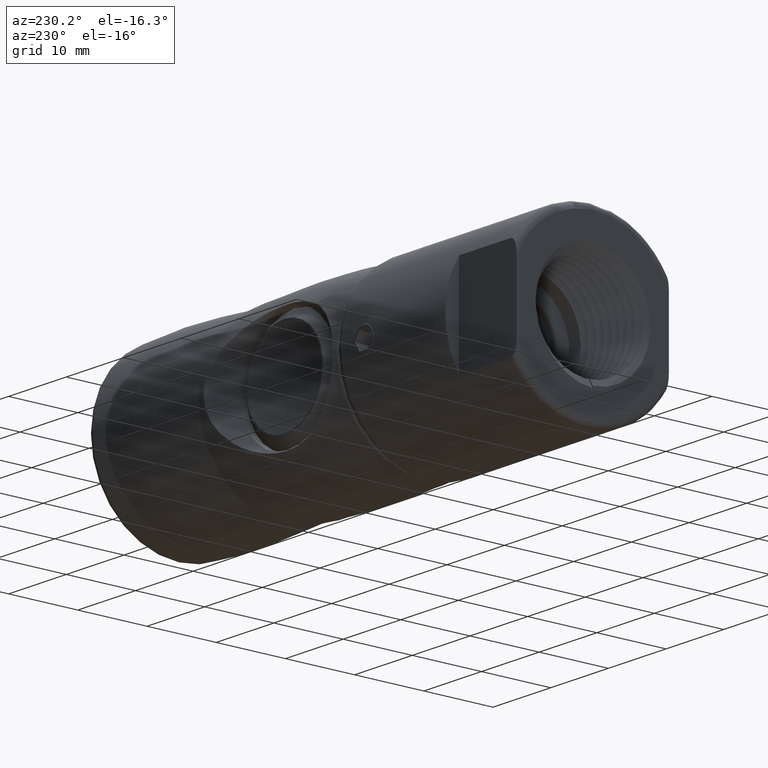
[diagram: clean part render]
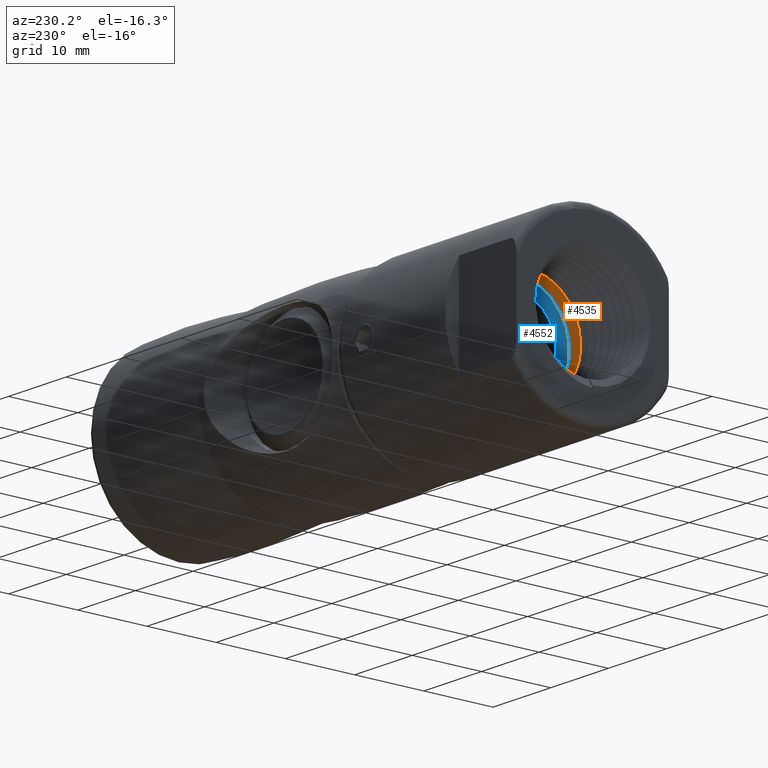
[diagram: same view with the hole feature highlighted: cylindrical wall and planar end face, labeled with their STEP entity ids]
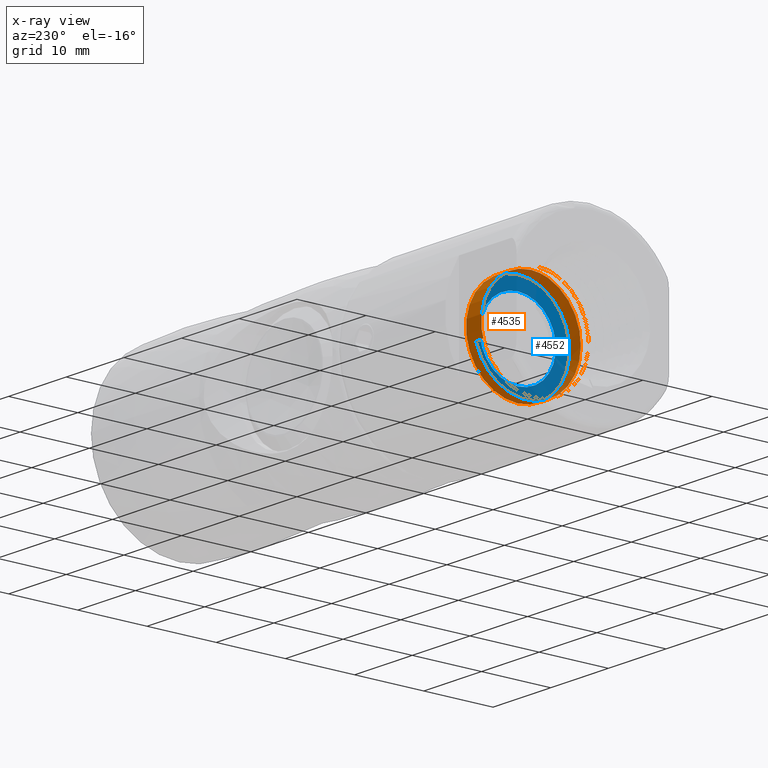
[diagram: x-ray of the same camera — body ghosted, the hole faces saturated]
A machine part, auxiliary view. The highlighted faces form one hole feature of diameter 14.95 mm: the cylindrical wall (entity #4535, orange) and its adjacent planar end face (entity #4552, blue) — they share a circular edge in the B-rep.
The next image is the same camera in x-ray (body ghosted, the hole faces saturated) — the bore reads through the body.
Wall:
#275=ELLIPSE('',#5119,275.193722271999,7.47358320249309);
#415=B_SPLINE_CURVE_WITH_KNOTS('',3,(#16108,#16109,#16110,#16111,#16112,
#16113,#16114,#16115,#16116,#16117,#16118,#16119,#16120,#16121,#16122,#16123,
#16124,#16125,#16126,#16127,#16128,#16129,#16130,#16131,#16132,#16133,#16134,
#16135,#16136,#16137,#16138,#16139,#16140,#16141,#16142,#16143,#16144,#16145),
 .UNSPECIFIED.,.F.,.F.,(4,2,2,2,2,2,2,2,2,2,2,2,2,2,2,2,2,2,4),(-35.3508891733278,
-35.347807024069,-35.058712468714,-34.7580738165976,-34.4689577743233,-34.1682522247599,
-33.8791949627026,-33.5785819225224,-33.2896115789978,-32.9890931698766,
-32.7002111328705,-32.3997896347593,-32.1109973111717,-31.8106751712886,
-31.5219739728728,-31.2217538147172,-30.9331451407682,-30.6330297730516,
-30.6278550714248),.UNSPECIFIED.);
#416=B_SPLINE_CURVE_WITH_KNOTS('',3,(#16149,#16150,#16151,#16152,#16153,
#16154,#16155,#16156,#16157,#16158,#16159,#16160,#16161,#16162,#16163,#16164,
#16165,#16166,#16167,#16168,#16169,#16170,#16171,#16172,#16173,#16174,#16175,
#16176),.UNSPECIFIED.,.F.,.F.,(4,2,2,2,2,2,2,2,2,2,2,2,2,4),(-3.34156159827174,
-3.31451898017866,-3.01577341117747,-2.72828635463307,-2.42939949655993,
-2.14181322199414,-1.84278993585508,-1.55510402706523,-1.25594894188716,
-0.968163399254647,-0.668880910727512,-0.380996081691551,-0.191971238518536,
-9.999999992516E-7),.UNSPECIFIED.);
#417=B_SPLINE_CURVE_WITH_KNOTS('',3,(#16179,#16180,#16181,#16182,#16183,
#16184,#16185,#16186,#16187,#16188,#16189,#16190,#16191,#16192,#16193,#16194,
#16195,#16196,#16197,#16198,#16199,#16200,#16201,#16202,#16203,#16204),
 .UNSPECIFIED.,.F.,.F.,(4,2,2,2,2,2,2,2,2,2,2,2,4),(-38.6959124408301,-38.4930383476158,
-38.2937940384954,-38.0047533326918,-37.7049649107626,-37.4159214405491,
-37.1159481333638,-36.8268976424206,-36.5267472949179,-36.2376857954479,
-35.9373658321502,-35.6482895922971,-35.3508891733278),.UNSPECIFIED.);
#603=LINE('',#16106,#789);
#604=LINE('',#16147,#790);
#789=VECTOR('',#6338,7.4750000000019);
#790=VECTOR('',#6339,7.4750000000019);
#885=CYLINDRICAL_SURFACE('',#5116,7.4750000000019);
#1163=FACE_OUTER_BOUND('',#1456,.T.);
#1456=EDGE_LOOP('',(#4118,#4119,#4120,#4121,#4122,#4123,#4124,#4125,#4126));
#1761=CIRCLE('',#5117,7.4750000000019);
#1762=CIRCLE('',#5118,7.4750000000019);
#2234=VERTEX_POINT('',#16101);
#2235=VERTEX_POINT('',#16102);
#2236=VERTEX_POINT('',#16105);
#2237=VERTEX_POINT('',#16107);
#2238=VERTEX_POINT('',#16146);
#2239=VERTEX_POINT('',#16148);
#2240=VERTEX_POINT('',#16177);
#2875=EDGE_CURVE('',#2234,#2235,#1761,.T.);
#2876=EDGE_CURVE('',#2235,#2234,#1762,.T.);
#2877=EDGE_CURVE('',#2235,#2236,#603,.T.);
#2878=EDGE_CURVE('',#2236,#2237,#415,.T.);
#2879=EDGE_CURVE('',#2238,#2237,#604,.T.);
#2880=EDGE_CURVE('',#2238,#2239,#416,.T.);
#2881=EDGE_CURVE('',#2239,#2240,#275,.T.);
#2882=EDGE_CURVE('',#2240,#2236,#417,.T.);
#4118=ORIENTED_EDGE('',*,*,#2875,.F.);
#4119=ORIENTED_EDGE('',*,*,#2876,.F.);
#4120=ORIENTED_EDGE('',*,*,#2877,.T.);
#4121=ORIENTED_EDGE('',*,*,#2878,.T.);
#4122=ORIENTED_EDGE('',*,*,#2879,.F.);
#4123=ORIENTED_EDGE('',*,*,#2880,.T.);
#4124=ORIENTED_EDGE('',*,*,#2881,.T.);
#4125=ORIENTED_EDGE('',*,*,#2882,.T.);
#4126=ORIENTED_EDGE('',*,*,#2877,.F.);
#4535=ADVANCED_FACE('',(#1163),#885,.F.);
#5116=AXIS2_PLACEMENT_3D('',#16100,#6332,#6333);
#5117=AXIS2_PLACEMENT_3D('',#16103,#6334,#6335);
#5118=AXIS2_PLACEMENT_3D('',#16104,#6336,#6337);
#5119=AXIS2_PLACEMENT_3D('',#16178,#6340,#6341);
#6332=DIRECTION('center_axis',(-1.,-8.10829853279917E-18,4.14709251126948E-18));
#6333=DIRECTION('ref_axis',(-4.14709251126948E-18,-5.55111512312578E-17,
-1.));
#6334=DIRECTION('center_axis',(-1.,-8.10829853279917E-18,4.14709251126948E-18));
#6335=DIRECTION('ref_axis',(-4.14709251126948E-18,-5.55111512312578E-17,
-1.));
#6336=DIRECTION('center_axis',(-1.,-8.10829853279917E-18,4.14709251126948E-18));
#6337=DIRECTION('ref_axis',(-4.14709251126948E-18,-5.55111512312578E-17,
-1.));
#6338=DIRECTION('',(-1.,-8.10829853279917E-18,4.14709251126948E-18));
#6339=DIRECTION('',(-1.,-8.10829853279917E-18,4.14709251126948E-18));
#6340=DIRECTION('center_axis',(-0.0271626396196766,-0.254947849158607,-0.96657321772243));
#6341=DIRECTION('ref_axis',(0.999630997516709,-0.00716417814799249,-0.0262019723534873));
#16100=CARTESIAN_POINT('Origin',(-19.2999999999919,-2.35140657451175E-16,
1.20265682826815E-16));
#16101=CARTESIAN_POINT('',(-6.29999999999157,-5.44678631978541E-16,-7.4750000000019));
#16102=CARTESIAN_POINT('',(-6.29999999999157,1.20063656129185E-15,7.4750000000019));
#16103=CARTESIAN_POINT('Origin',(-6.29999999999157,-1.29732776524783E-16,
6.63534801803101E-17));
#16104=CARTESIAN_POINT('Origin',(-6.29999999999157,-1.29732776524783E-16,
6.63534801803101E-17));
#16105=CARTESIAN_POINT('',(-8.58990633371611,-1.2321341411207E-8,7.4750000000019));
#16106=CARTESIAN_POINT('',(-19.2999999999919,1.09522868036546E-15,7.4750000000019));
#16107=CARTESIAN_POINT('',(-9.92990633703788,4.90210964220244E-8,7.4750000000019));
#16108=CARTESIAN_POINT('Ctrl Pts',(-8.58990633404947,-1.23303811164267E-8,
7.4750000000019));
#16109=CARTESIAN_POINT('Ctrl Pts',(-8.59018371149158,0.0102445175949692,
7.4750000000188));
#16110=CARTESIAN_POINT('Ctrl Pts',(-8.59046073482097,0.0204900798690855,
7.47497893973303));
#16111=CARTESIAN_POINT('Ctrl Pts',(-8.61675304009428,0.991822759691445,
7.47098486492669));
#16112=CARTESIAN_POINT('Ctrl Pts',(-8.6445928228668,1.94315771646578,7.28171375093242));
#16113=CARTESIAN_POINT('Ctrl Pts',(-8.70198869789945,3.75740536162662,6.53883447672982));
#16114=CARTESIAN_POINT('Ctrl Pts',(-8.73097609327642,4.59695390990504,5.97847941780264));
#16115=CARTESIAN_POINT('Ctrl Pts',(-8.78401251322552,5.9789189372688,4.58820787748756));
#16116=CARTESIAN_POINT('Ctrl Pts',(-8.81184277020508,6.51863507364606,3.78238142228701));
#16117=CARTESIAN_POINT('Ctrl Pts',(-8.86923615501621,7.27827329622182,1.9751617354886));
#16118=CARTESIAN_POINT('Ctrl Pts',(-8.89824727411807,7.4768751641628,0.985384837096206));
#16119=CARTESIAN_POINT('Ctrl Pts',(-8.95128241754155,7.47317130459409,-0.974914374131673));
#16120=CARTESIAN_POINT('Ctrl Pts',(-8.97909215110177,7.28612984808676,-1.9264709991455));
#16121=CARTESIAN_POINT('Ctrl Pts',(-9.03648089329982,6.54751624393525,-3.74223357094088));
#16122=CARTESIAN_POINT('Ctrl Pts',(-9.06549498382938,5.98912709615744,-4.58309463109848));
#16123=CARTESIAN_POINT('Ctrl Pts',(-9.11855001350816,4.60219091042884,-5.96811293233131));
#16124=CARTESIAN_POINT('Ctrl Pts',(-9.14632393362385,3.79783646132177,-6.50962349929152));
#16125=CARTESIAN_POINT('Ctrl Pts',(-9.20370479512882,1.99279426083778,-7.27343023019614));
#16126=CARTESIAN_POINT('Ctrl Pts',(-9.2327220543393,1.00376306796593,-7.4743958883686));
#16127=CARTESIAN_POINT('Ctrl Pts',(-9.28579854484883,-0.956053089642736,
-7.47557805269305));
#16128=CARTESIAN_POINT('Ctrl Pts',(-9.31353401865262,-1.90784627916185,
-7.2909978188838));
#16129=CARTESIAN_POINT('Ctrl Pts',(-9.37090631329964,-3.72503856538927,
-6.55727214274488));
#16130=CARTESIAN_POINT('Ctrl Pts',(-9.39992694516155,-4.5671335554171,-6.00126140148657));
#16131=CARTESIAN_POINT('Ctrl Pts',(-9.45302657952668,-5.95551477740623,
-4.61843105299223));
#16132=CARTESIAN_POINT('Ctrl Pts',(-9.48072082934555,-6.49908679625225,
-3.81577635478796));
#16133=CARTESIAN_POINT('Ctrl Pts',(-9.5380838126477,-7.26771802757678,-2.01337929607312));
#16134=CARTESIAN_POINT('Ctrl Pts',(-9.56710802680685,-7.47144223342554,
-1.02522612004003));
#16135=CARTESIAN_POINT('Ctrl Pts',(-9.6202326011604,-7.47832951730555,0.934018814003579));
#16136=CARTESIAN_POINT('Ctrl Pts',(-9.64788270534342,-7.29662150565203,
1.88608837122143));
#16137=CARTESIAN_POINT('Ctrl Pts',(-9.70523556988809,-6.56859995016597,
3.7049403694782));
#16138=CARTESIAN_POINT('Ctrl Pts',(-9.73426358031516,-6.01536781883336,
4.54846716765385));
#16139=CARTESIAN_POINT('Ctrl Pts',(-9.78741500824425,-4.63733189283021,
5.94076450619587));
#16140=CARTESIAN_POINT('Ctrl Pts',(-9.81501790392979,-3.83665812063137,
6.48673954054848));
#16141=CARTESIAN_POINT('Ctrl Pts',(-9.87235977449879,-2.0373513002726,7.26098678387942));
#16142=CARTESIAN_POINT('Ctrl Pts',(-9.90139179778376,-1.05023073556685,
7.46792198951502));
#16143=CARTESIAN_POINT('Ctrl Pts',(-9.92897350161425,-0.0344283533174115,
7.47494054565288));
#16144=CARTESIAN_POINT('Ctrl Pts',(-9.9294402865053,-0.0172127964443151,
7.47500000011487));
#16145=CARTESIAN_POINT('Ctrl Pts',(-9.92990633571158,4.9057210358007E-8,
7.4750000000019));
#16146=CARTESIAN_POINT('',(-9.91009366560049,-4.82665482298777E-15,7.4750000000019));
#16147=CARTESIAN_POINT('',(-19.2999999999919,1.09522868036546E-15,7.4750000000019));
#16148=CARTESIAN_POINT('',(-8.95894595190257,7.23234603294364,-1.88912568660551));
#16149=CARTESIAN_POINT('Ctrl Pts',(-9.91009366560049,-2.72090585503117E-14,
7.4750000000019));
#16150=CARTESIAN_POINT('Ctrl Pts',(-9.90765606037462,-0.0900293820212768,
7.4750000000019));
#16151=CARTESIAN_POINT('Ctrl Pts',(-9.90520763450106,-0.180121068280662,
7.47337352667654));
#16152=CARTESIAN_POINT('Ctrl Pts',(-9.87543071498135,-1.26569749167997,
7.43410281831822));
#16153=CARTESIAN_POINT('Ctrl Pts',(-9.84635186536408,-2.24396978785498,
7.19947049698441));
#16154=CARTESIAN_POINT('Ctrl Pts',(-9.78917081793801,-4.01685250269002,
6.3764645842547));
#16155=CARTESIAN_POINT('Ctrl Pts',(-9.76217795312261,-4.80054428141894,
5.80939278172268));
#16156=CARTESIAN_POINT('Ctrl Pts',(-9.70865954167874,-6.13691473265973,
4.38256163222093));
#16157=CARTESIAN_POINT('Ctrl Pts',(-9.67958626585267,-6.6658179510942,3.52637757740897));
#16158=CARTESIAN_POINT('Ctrl Pts',(-9.62238172513331,-7.3437207182386,1.69250597697367));
#16159=CARTESIAN_POINT('Ctrl Pts',(-9.59530836418885,-7.50003475551705,
0.737662250128738));
#16160=CARTESIAN_POINT('Ctrl Pts',(-9.54184080940111,-7.44232923957557,
-1.21694480638971));
#16161=CARTESIAN_POINT('Ctrl Pts',(-9.51277304330346,-7.21391374251809,
-2.19739950649523));
#16162=CARTESIAN_POINT('Ctrl Pts',(-9.45554679477631,-6.40177732807891,
-3.97648782951195));
#16163=CARTESIAN_POINT('Ctrl Pts',(-9.42839660301737,-5.83940026163927,
-4.76408027863137));
#16164=CARTESIAN_POINT('Ctrl Pts',(-9.37497682054429,-4.4201426979845,-6.11000541093123));
#16165=CARTESIAN_POINT('Ctrl Pts',(-9.34591446018653,-3.56664345139754,
-6.6444546157552));
#16166=CARTESIAN_POINT('Ctrl Pts',(-9.28866816696981,-1.73587334116503,
-7.33364438082795));
#16167=CARTESIAN_POINT('Ctrl Pts',(-9.26144486370777,-0.781553624865719,
-7.49563937982974));
#16168=CARTESIAN_POINT('Ctrl Pts',(-9.20806988462281,1.17434608900397,-7.44924877895024));
#16169=CARTESIAN_POINT('Ctrl Pts',(-9.17901279351803,2.15667485969144,-7.22627448921048));
#16170=CARTESIAN_POINT('Ctrl Pts',(-9.12174800223299,3.94115572714401,-6.42364876084518));
#16171=CARTESIAN_POINT('Ctrl Pts',(-9.09445531959601,4.73215287028025,-5.86536722833617));
#16172=CARTESIAN_POINT('Ctrl Pts',(-9.05114620435921,5.8318592640556,-4.7182360847246));
#16173=CARTESIAN_POINT('Ctrl Pts',(-9.03319806604362,6.20851195970267,-4.21030567036353));
#16174=CARTESIAN_POINT('Ctrl Pts',(-8.99630602536335,6.83027945350105,-3.10355205279624));
#16175=CARTESIAN_POINT('Ctrl Pts',(-8.97750287371907,7.07069453165188,-2.50799377059612));
#16176=CARTESIAN_POINT('Ctrl Pts',(-8.95894595190256,7.2323460329437,-1.88912568660531));
#16177=CARTESIAN_POINT('',(-7.63972872602228,7.22320352368723,-1.92378685674786));
#16178=CARTESIAN_POINT('Origin',(-5.82387823219082,-0.0160845351257501,
-0.0653475846167469));
#16179=CARTESIAN_POINT('Ctrl Pts',(-7.63972872620402,7.22320352273358,-1.92378685648843));
#16180=CARTESIAN_POINT('Ctrl Pts',(-7.65931539255552,7.04945129568593,-2.57617082213433));
#16181=CARTESIAN_POINT('Ctrl Pts',(-7.67917168099829,6.78811867525559,-3.20200946608782));
#16182=CARTESIAN_POINT('Ctrl Pts',(-7.71798965515516,6.11066722605348,-4.35603050336513));
#16183=CARTESIAN_POINT('Ctrl Pts',(-7.73666414764646,5.70042720515039,-4.88060305419007));
#16184=CARTESIAN_POINT('Ctrl Pts',(-7.7807687694696,4.53884592347487,-6.01660126862417));
#16185=CARTESIAN_POINT('Ctrl Pts',(-7.80866773553491,3.72790558470994,-6.55005545567184));
#16186=CARTESIAN_POINT('Ctrl Pts',(-7.86602747022481,1.91544923964202,-7.29394415138507));
#16187=CARTESIAN_POINT('Ctrl Pts',(-7.89477623281089,0.926190335096484,
-7.48415091328099));
#16188=CARTESIAN_POINT('Ctrl Pts',(-7.94791889569941,-1.0326854257807,-7.46551251585142));
#16189=CARTESIAN_POINT('Ctrl Pts',(-7.97580432992131,-1.98348282069167,
-7.27090123491593));
#16190=CARTESIAN_POINT('Ctrl Pts',(-8.03317256131171,-3.79262747027603,
-6.5182384030416));
#16191=CARTESIAN_POINT('Ctrl Pts',(-8.06197572167933,-4.62791306699677,
-5.95429644041086));
#16192=CARTESIAN_POINT('Ctrl Pts',(-8.11509396075634,-6.00218045167769,
-4.55783616104136));
#16193=CARTESIAN_POINT('Ctrl Pts',(-8.14296675820326,-6.53804462742513,
-3.7488538097558));
#16194=CARTESIAN_POINT('Ctrl Pts',(-8.20034279780918,-7.28802274127199,
-1.93830049984091));
#16195=CARTESIAN_POINT('Ctrl Pts',(-8.22919684694885,-7.48143682889715,
-0.948763486056619));
#16196=CARTESIAN_POINT('Ctrl Pts',(-8.28229234943351,-7.46848020608943,
1.01073645381694));
#16197=CARTESIAN_POINT('Ctrl Pts',(-8.31015335722834,-7.27673782696213,
1.96182630475188));
#16198=CARTESIAN_POINT('Ctrl Pts',(-8.36753657299007,-6.52932803994805,
3.77371613154733));
#16199=CARTESIAN_POINT('Ctrl Pts',(-8.39643817572669,-5.96731166772616,
4.61129148643302));
#16200=CARTESIAN_POINT('Ctrl Pts',(-8.44951252724585,-4.57417483198251,
5.98969715290648));
#16201=CARTESIAN_POINT('Ctrl Pts',(-8.47736254544964,-3.76688646519213,
6.52763388716957));
#16202=CARTESIAN_POINT('Ctrl Pts',(-8.53445232955431,-1.96744107386979,
7.27891360661897));
#16203=CARTESIAN_POINT('Ctrl Pts',(-8.56314183134083,-0.988507754175106,
7.47499999837131));
#16204=CARTESIAN_POINT('Ctrl Pts',(-8.58990633404947,-1.23303794952179E-8,
7.4750000000019));
End face:
#166=PLANE('',#5165);
#225=FACE_BOUND('',#1476,.T.);
#1180=FACE_OUTER_BOUND('',#1475,.T.);
#1475=EDGE_LOOP('',(#4230,#4231));
#1476=EDGE_LOOP('',(#4232,#4233));
#1761=CIRCLE('',#5117,7.4750000000019);
#1762=CIRCLE('',#5118,7.4750000000019);
#1788=CIRCLE('',#5157,5.50000000000034);
#1789=CIRCLE('',#5158,5.50000000000034);
#2234=VERTEX_POINT('',#16101);
#2235=VERTEX_POINT('',#16102);
#2276=VERTEX_POINT('',#16446);
#2277=VERTEX_POINT('',#16448);
#2875=EDGE_CURVE('',#2234,#2235,#1761,.T.);
#2876=EDGE_CURVE('',#2235,#2234,#1762,.T.);
#2931=EDGE_CURVE('',#2276,#2277,#1788,.T.);
#2932=EDGE_CURVE('',#2277,#2276,#1789,.T.);
#4230=ORIENTED_EDGE('',*,*,#2875,.T.);
#4231=ORIENTED_EDGE('',*,*,#2876,.T.);
#4232=ORIENTED_EDGE('',*,*,#2932,.F.);
#4233=ORIENTED_EDGE('',*,*,#2931,.F.);
#4552=ADVANCED_FACE('',(#1180,#225),#166,.F.);
#5117=AXIS2_PLACEMENT_3D('',#16103,#6334,#6335);
#5118=AXIS2_PLACEMENT_3D('',#16104,#6336,#6337);
#5157=AXIS2_PLACEMENT_3D('',#16449,#6427,#6428);
#5158=AXIS2_PLACEMENT_3D('',#16450,#6429,#6430);
#5165=AXIS2_PLACEMENT_3D('',#16604,#6447,#6448);
#6334=DIRECTION('center_axis',(-1.,-8.10829853279917E-18,4.14709251126948E-18));
#6335=DIRECTION('ref_axis',(-4.14709251126948E-18,-5.55111512312578E-17,
-1.));
#6336=DIRECTION('center_axis',(-1.,-8.10829853279917E-18,4.14709251126948E-18));
#6337=DIRECTION('ref_axis',(-4.14709251126948E-18,-5.55111512312578E-17,
-1.));
#6427=DIRECTION('center_axis',(-1.,-8.10829853279917E-18,4.14709251126948E-18));
#6428=DIRECTION('ref_axis',(-4.14709251126948E-18,-5.55111512312578E-17,
-1.));
#6429=DIRECTION('center_axis',(-1.,-8.10829853279917E-18,4.14709251126948E-18));
#6430=DIRECTION('ref_axis',(-4.14709251126948E-18,-5.55111512312578E-17,
-1.));
#6447=DIRECTION('center_axis',(1.,8.10829853279917E-18,-4.14709251126948E-18));
#6448=DIRECTION('ref_axis',(4.14709251126948E-18,5.55111512312578E-17,1.));
#16101=CARTESIAN_POINT('',(-6.29999999999157,-5.44678631978541E-16,-7.4750000000019));
#16102=CARTESIAN_POINT('',(-6.29999999999157,1.20063656129185E-15,7.4750000000019));
#16103=CARTESIAN_POINT('Origin',(-6.29999999999157,-1.29732776524783E-16,
6.63534801803101E-17));
#16104=CARTESIAN_POINT('Origin',(-6.29999999999157,-1.29732776524783E-16,
6.63534801803101E-17));
#16446=CARTESIAN_POINT('',(-6.29999999999157,8.49134294778239E-16,5.50000000000034));
#16448=CARTESIAN_POINT('',(-6.29999999999157,-4.3504410829672E-16,-5.50000000000034));
#16449=CARTESIAN_POINT('Origin',(-6.29999999999157,-1.29732776524783E-16,
6.63534801803101E-17));
#16450=CARTESIAN_POINT('Origin',(-6.29999999999157,-1.29732776524783E-16,
6.63534801803101E-17));
#16604=CARTESIAN_POINT('Origin',(-6.29999999999157,-7.4750000000019,4.81299335634068E-16));